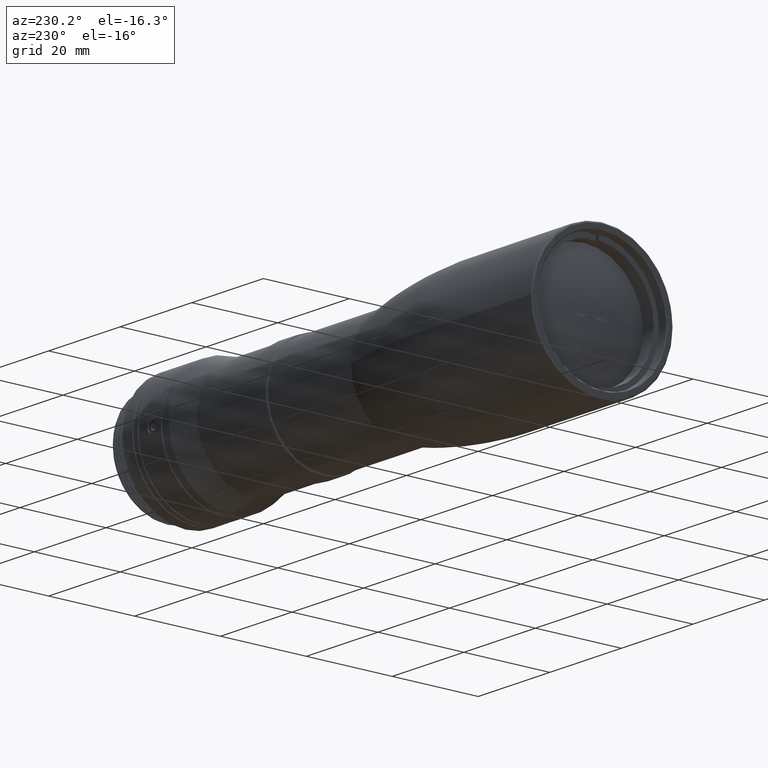
[diagram: clean part render]
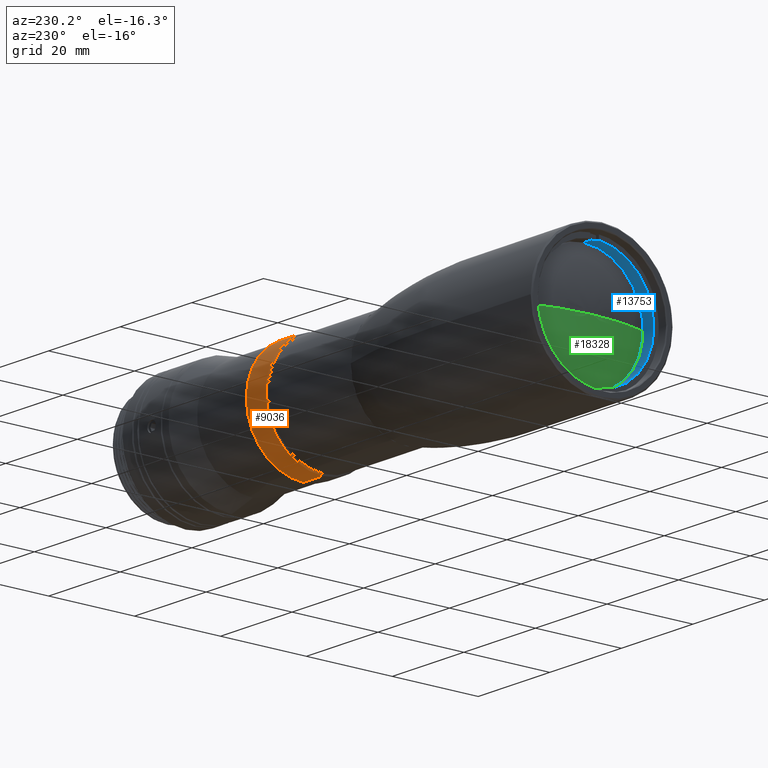
[diagram: same view with three faces highlighted in distinct colors, each labeled with its STEP entity id]
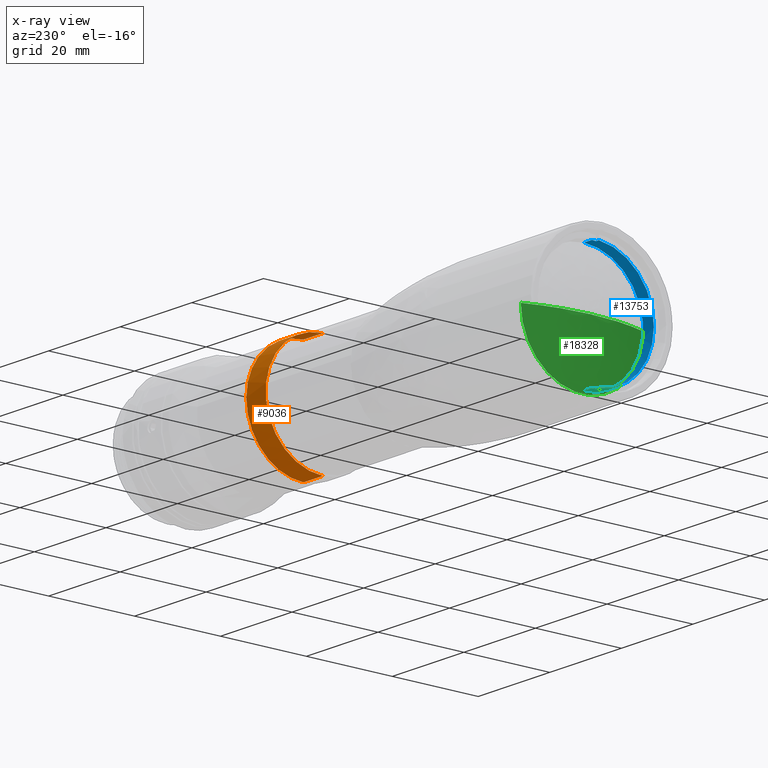
[diagram: x-ray of the same camera — body ghosted, the three highlighted faces saturated]
A machine part, auxiliary view with three faces highlighted in distinct colors.
The next image is the same camera in x-ray (body ghosted, the three faces saturated) — at least one of them is partly hidden behind the body in this view.
Their STEP definitions:

[orange] entity #9036 — the highlighted cylindrical surface (partial cylindrical patch) has radius 13.3 mm, axis along (1, -0, 0).
#89 = CARTESIAN_POINT ( 'NONE',  ( 23.41799999999955872, 0.000000000000000000, 0.000000000000000000 ) ) ;
#118 = CARTESIAN_POINT ( 'NONE',  ( 28.81800000000000139, 13.30000000000088178, 1.628780242866088029E-15 ) ) ;
#204 = DIRECTION ( 'NONE',  ( 1.000000000000000000, 0.000000000000000000, 0.000000000000000000 ) ) ;
#1183 = CARTESIAN_POINT ( 'NONE',  ( 28.81800000000000139, 1.628780242865979955E-15, 13.30000000000000071 ) ) ;
#1218 = DIRECTION ( 'NONE',  ( 1.000000000000000000, -0.000000000000000000, 0.000000000000000000 ) ) ;
#1599 = CARTESIAN_POINT ( 'NONE',  ( 28.81800000000000139, 0.000000000000000000, -13.30000000000000071 ) ) ;
#2539 = CIRCLE ( 'NONE', #13169, 13.30000000000000071 ) ;
#3763 = VECTOR ( 'NONE', #16466, 1000.000000000000000 ) ;
#4075 = ORIENTED_EDGE ( 'NONE', *, *, #7999, .F. ) ;
#4741 = DIRECTION ( 'NONE',  ( 0.000000000000000000, -1.000000000000000000, 0.000000000000000000 ) ) ;
#5497 = VERTEX_POINT ( 'NONE', #1599 ) ;
#6020 = DIRECTION ( 'NONE',  ( 0.000000000000000000, 0.000000000000000000, -1.000000000000000000 ) ) ;
#6218 = VECTOR ( 'NONE', #15659, 1000.000000000000000 ) ;
#6384 = VERTEX_POINT ( 'NONE', #1183 ) ;
#6543 = ORIENTED_EDGE ( 'NONE', *, *, #8298, .F. ) ;
#6583 = AXIS2_PLACEMENT_3D ( 'NONE', #8933, #14811, #4741 ) ;
#7117 = LINE ( 'NONE', #12646, #6218 ) ;
#7595 = ORIENTED_EDGE ( 'NONE', *, *, #14971, .F. ) ;
#7887 = CARTESIAN_POINT ( 'NONE',  ( 23.41799999999955872, 0.000000000000000000, -13.30000000000044302 ) ) ;
#7999 = EDGE_CURVE ( 'NONE', #5497, #11227, #2539, .T. ) ;
#8282 = FACE_OUTER_BOUND ( 'NONE', #15791, .T. ) ;
#8298 = EDGE_CURVE ( 'NONE', #17377, #5497, #9163, .T. ) ;
#8378 = DIRECTION ( 'NONE',  ( 0.000000000000000000, 0.000000000000000000, -1.000000000000000000 ) ) ;
#8933 = CARTESIAN_POINT ( 'NONE',  ( 28.81800000000000139, 0.000000000000000000, 0.000000000000000000 ) ) ;
#9036 = ADVANCED_FACE ( 'NONE', ( #8282 ), #15668, .T. ) ;
#9163 = LINE ( 'NONE', #14937, #3763 ) ;
#11227 = VERTEX_POINT ( 'NONE', #118 ) ;
#12053 = ORIENTED_EDGE ( 'NONE', *, *, #17044, .T. ) ;
#12339 = CIRCLE ( 'NONE', #6583, 13.30000000000000071 ) ;
#12646 = CARTESIAN_POINT ( 'NONE',  ( 23.41799999999999571, 1.628780242865979955E-15, 13.30000000000000071 ) ) ;
#13169 = AXIS2_PLACEMENT_3D ( 'NONE', #17135, #14094, #18411 ) ;
#13566 = ORIENTED_EDGE ( 'NONE', *, *, #15634, .T. ) ;
#14094 = DIRECTION ( 'NONE',  ( 1.000000000000000000, 0.000000000000000000, 0.000000000000000000 ) ) ;
#14159 = VERTEX_POINT ( 'NONE', #17340 ) ;
#14667 = AXIS2_PLACEMENT_3D ( 'NONE', #89, #204, #6020 ) ;
#14811 = DIRECTION ( 'NONE',  ( 1.000000000000000000, 0.000000000000000000, 0.000000000000000000 ) ) ;
#14937 = CARTESIAN_POINT ( 'NONE',  ( 23.41799999999999571, 0.000000000000000000, -13.30000000000000071 ) ) ;
#14971 = EDGE_CURVE ( 'NONE', #11227, #6384, #12339, .T. ) ;
#15566 = CARTESIAN_POINT ( 'NONE',  ( 23.41799999999999571, 0.000000000000000000, 0.000000000000000000 ) ) ;
#15634 = EDGE_CURVE ( 'NONE', #17377, #14159, #17086, .T. ) ;
#15659 = DIRECTION ( 'NONE',  ( 1.000000000000000000, -0.000000000000000000, 0.000000000000000000 ) ) ;
#15668 = CYLINDRICAL_SURFACE ( 'NONE', #16509, 13.30000000000000071 ) ;
#15791 = EDGE_LOOP ( 'NONE', ( #13566, #12053, #7595, #4075, #6543 ) ) ;
#16466 = DIRECTION ( 'NONE',  ( 1.000000000000000000, -0.000000000000000000, 0.000000000000000000 ) ) ;
#16509 = AXIS2_PLACEMENT_3D ( 'NONE', #15566, #1218, #8378 ) ;
#17044 = EDGE_CURVE ( 'NONE', #14159, #6384, #7117, .T. ) ;
#17086 = CIRCLE ( 'NONE', #14667, 13.30000000000044302 ) ;
#17135 = CARTESIAN_POINT ( 'NONE',  ( 28.81800000000000139, 0.000000000000000000, 0.000000000000000000 ) ) ;
#17340 = CARTESIAN_POINT ( 'NONE',  ( 23.41799999999955872, 1.628780242866034190E-15, 13.30000000000044302 ) ) ;
#17377 = VERTEX_POINT ( 'NONE', #7887 ) ;
#18411 = DIRECTION ( 'NONE',  ( 0.000000000000000000, -1.000000000000000000, 0.000000000000000000 ) ) ;

[blue] entity #13753 — the highlighted cylindrical surface (partial cylindrical patch) has radius 13.8 mm, axis along (1, -0, 0).
#445 = LINE ( 'NONE', #6636, #5905 ) ;
#1030 = CARTESIAN_POINT ( 'NONE',  ( -52.53999999999999915, 1.690012582823347529E-15, 13.80000000000000071 ) ) ;
#1041 = DIRECTION ( 'NONE',  ( 1.000000000000000000, -0.000000000000000000, 0.000000000000000000 ) ) ;
#1066 = CARTESIAN_POINT ( 'NONE',  ( -52.53999999999999915, -0.9999999999999347189, 13.76372042726820943 ) ) ;
#1525 = CARTESIAN_POINT ( 'NONE',  ( -49.53999999999999915, 0.000000000000000000, 0.000000000000000000 ) ) ;
#1772 = CYLINDRICAL_SURFACE ( 'NONE', #17485, 13.80000000000000071 ) ;
#1935 = DIRECTION ( 'NONE',  ( -1.000000000000000000, -0.000000000000000000, -0.000000000000000000 ) ) ;
#2005 = VECTOR ( 'NONE', #5909, 1000.000000000000000 ) ;
#2192 = EDGE_CURVE ( 'NONE', #4868, #9138, #14197, .T. ) ;
#2372 = DIRECTION ( 'NONE',  ( 1.000000000000000000, -0.000000000000000000, 0.000000000000000000 ) ) ;
#3097 = CARTESIAN_POINT ( 'NONE',  ( -52.53999999999999915, 0.000000000000000000, 0.000000000000000000 ) ) ;
#3482 = DIRECTION ( 'NONE',  ( 1.000000000000000000, 0.000000000000000000, 0.000000000000000000 ) ) ;
#3524 = VECTOR ( 'NONE', #2372, 1000.000000000000000 ) ;
#3653 = VERTEX_POINT ( 'NONE', #5206 ) ;
#4070 = DIRECTION ( 'NONE',  ( 0.000000000000000000, 0.000000000000000000, -1.000000000000000000 ) ) ;
#4266 = DIRECTION ( 'NONE',  ( 0.000000000000000000, 0.000000000000000000, -1.000000000000000000 ) ) ;
#4611 = EDGE_LOOP ( 'NONE', ( #13312, #10736, #15697, #9253, #11433, #14120, #15524, #8667 ) ) ;
#4868 = VERTEX_POINT ( 'NONE', #1066 ) ;
#4978 = LINE ( 'NONE', #15239, #6244 ) ;
#5206 = CARTESIAN_POINT ( 'NONE',  ( -51.73999999999999488, 1.690012582823347529E-15, 13.80000000000000071 ) ) ;
#5381 = EDGE_CURVE ( 'NONE', #3653, #14230, #14066, .T. ) ;
#5705 = DIRECTION ( 'NONE',  ( 0.000000000000000000, 0.000000000000000000, -1.000000000000000000 ) ) ;
#5905 = VECTOR ( 'NONE', #3482, 1000.000000000000000 ) ;
#5909 = DIRECTION ( 'NONE',  ( 1.000000000000000000, -0.000000000000000000, 0.000000000000000000 ) ) ;
#6034 = AXIS2_PLACEMENT_3D ( 'NONE', #15430, #6706, #5705 ) ;
#6171 = CARTESIAN_POINT ( 'NONE',  ( -51.73999999999999488, 0.000000000000000000, -13.80000000000000071 ) ) ;
#6209 = AXIS2_PLACEMENT_3D ( 'NONE', #10075, #17393, #4266 ) ;
#6244 = VECTOR ( 'NONE', #1935, 1000.000000000000000 ) ;
#6245 = EDGE_CURVE ( 'NONE', #9138, #13609, #445, .T. ) ;
#6504 = EDGE_CURVE ( 'NONE', #14230, #4868, #4978, .T. ) ;
#6636 = CARTESIAN_POINT ( 'NONE',  ( -51.03999999999999915, -0.9999999999998701039, -13.76372042726821476 ) ) ;
#6706 = DIRECTION ( 'NONE',  ( 1.000000000000000000, -0.000000000000000000, 0.000000000000000000 ) ) ;
#7147 = CARTESIAN_POINT ( 'NONE',  ( -52.53999999999999915, 0.000000000000000000, -13.80000000000000071 ) ) ;
#8383 = CARTESIAN_POINT ( 'NONE',  ( -51.73999999999999488, 0.000000000000000000, 0.000000000000000000 ) ) ;
#8667 = ORIENTED_EDGE ( 'NONE', *, *, #6504, .F. ) ;
#8774 = LINE ( 'NONE', #7147, #2005 ) ;
#9138 = VERTEX_POINT ( 'NONE', #12526 ) ;
#9253 = ORIENTED_EDGE ( 'NONE', *, *, #14445, .F. ) ;
#9523 = EDGE_CURVE ( 'NONE', #13609, #18508, #14371, .T. ) ;
#9698 = VERTEX_POINT ( 'NONE', #17969 ) ;
#10075 = CARTESIAN_POINT ( 'NONE',  ( -51.73999999999999488, 0.000000000000000000, 0.000000000000000000 ) ) ;
#10146 = VERTEX_POINT ( 'NONE', #17058 ) ;
#10736 = ORIENTED_EDGE ( 'NONE', *, *, #14771, .T. ) ;
#11433 = ORIENTED_EDGE ( 'NONE', *, *, #9523, .F. ) ;
#11847 = CARTESIAN_POINT ( 'NONE',  ( -51.73999999999999488, -0.9999999999999349409, 13.76372042726821121 ) ) ;
#12526 = CARTESIAN_POINT ( 'NONE',  ( -52.53999999999999915, -0.9999999999999349409, -13.76372042726821121 ) ) ;
#13312 = ORIENTED_EDGE ( 'NONE', *, *, #5381, .F. ) ;
#13363 = FACE_OUTER_BOUND ( 'NONE', #4611, .T. ) ;
#13510 = CIRCLE ( 'NONE', #18394, 13.80000000000000071 ) ;
#13609 = VERTEX_POINT ( 'NONE', #15871 ) ;
#13638 = EDGE_CURVE ( 'NONE', #9698, #10146, #13510, .T. ) ;
#13753 = ADVANCED_FACE ( 'NONE', ( #13363 ), #1772, .F. ) ;
#14066 = CIRCLE ( 'NONE', #16512, 13.80000000000000071 ) ;
#14120 = ORIENTED_EDGE ( 'NONE', *, *, #6245, .F. ) ;
#14197 = CIRCLE ( 'NONE', #6034, 13.80000000000000071 ) ;
#14230 = VERTEX_POINT ( 'NONE', #11847 ) ;
#14371 = CIRCLE ( 'NONE', #6209, 13.80000000000000071 ) ;
#14445 = EDGE_CURVE ( 'NONE', #18508, #9698, #8774, .T. ) ;
#14604 = DIRECTION ( 'NONE',  ( 0.000000000000000000, 0.000000000000000000, -1.000000000000000000 ) ) ;
#14771 = EDGE_CURVE ( 'NONE', #3653, #10146, #18268, .T. ) ;
#15239 = CARTESIAN_POINT ( 'NONE',  ( -51.03999999999999915, -0.9999999999998698819, 13.76372042726821476 ) ) ;
#15430 = CARTESIAN_POINT ( 'NONE',  ( -52.53999999999999915, 0.000000000000000000, 0.000000000000000000 ) ) ;
#15524 = ORIENTED_EDGE ( 'NONE', *, *, #2192, .F. ) ;
#15697 = ORIENTED_EDGE ( 'NONE', *, *, #13638, .F. ) ;
#15871 = CARTESIAN_POINT ( 'NONE',  ( -51.73999999999999488, -0.9999999999999349409, -13.76372042726820943 ) ) ;
#15986 = DIRECTION ( 'NONE',  ( 0.000000000000000000, 0.000000000000000000, -1.000000000000000000 ) ) ;
#16512 = AXIS2_PLACEMENT_3D ( 'NONE', #8383, #1041, #4070 ) ;
#17058 = CARTESIAN_POINT ( 'NONE',  ( -49.53999999999999915, 1.690012582823347529E-15, 13.80000000000000071 ) ) ;
#17318 = DIRECTION ( 'NONE',  ( -1.000000000000000000, 0.000000000000000000, -0.000000000000000000 ) ) ;
#17393 = DIRECTION ( 'NONE',  ( 1.000000000000000000, -0.000000000000000000, 0.000000000000000000 ) ) ;
#17467 = DIRECTION ( 'NONE',  ( 1.000000000000000000, -0.000000000000000000, 0.000000000000000000 ) ) ;
#17485 = AXIS2_PLACEMENT_3D ( 'NONE', #3097, #17467, #14604 ) ;
#17969 = CARTESIAN_POINT ( 'NONE',  ( -49.53999999999999915, 0.000000000000000000, -13.80000000000000071 ) ) ;
#18268 = LINE ( 'NONE', #1030, #3524 ) ;
#18394 = AXIS2_PLACEMENT_3D ( 'NONE', #1525, #17318, #15986 ) ;
#18508 = VERTEX_POINT ( 'NONE', #6171 ) ;

[green] entity #18328 — the highlighted face is a freeform B-spline surface patch.
#319 = CARTESIAN_POINT ( 'NONE',  ( -51.51800000000000779, 0.000000000000000000, 3.224183580766461833E-31 ) ) ;
#1097 = EDGE_LOOP ( 'NONE', ( #12667, #14612, #2785 ) ) ;
#1403 = CARTESIAN_POINT ( 'NONE',  ( -51.51800000000000779, -4.882066617542334619, -9.764133235084646145 ) ) ;
#1898 = CARTESIAN_POINT ( 'NONE',  ( -51.51800000000001489, 4.882066617542299980, -5.978807256397325019E-16 ) ) ;
#1977 = CARTESIAN_POINT ( 'NONE',  ( -49.07042577123358740, 14.29969172656387322, 4.604903683524175501E-14 ) ) ;
#2731 = CARTESIAN_POINT ( 'NONE',  ( -51.51800000000000779, -5.265491377613960073E-15, -1.695636598605592973E-29 ) ) ;
#2785 = ORIENTED_EDGE ( 'NONE', *, *, #11195, .F. ) ;
#3485 = DIRECTION ( 'NONE',  ( 1.000000000000000000, 0.000000000000000000, 0.000000000000000000 ) ) ;
#4260 = CARTESIAN_POINT ( 'NONE',  ( -51.51800000000001489, -4.882066617542299980, 1.836965876599079571E-14 ) ) ;
#4350 = CARTESIAN_POINT ( 'NONE',  ( -50.69442775314934124, -9.694646731522599481, 3.647786199290944002E-14 ) ) ;
#5340 = VERTEX_POINT ( 'NONE', #18635 ) ;
#6101 =( BOUNDED_CURVE ( )  B_SPLINE_CURVE ( 3, ( #319, #14948, #10690, #8892 ),
 .UNSPECIFIED., .F., .T. ) 
 B_SPLINE_CURVE_WITH_KNOTS ( ( 4, 4 ),
 ( 0.000000000000000000, 0.9802938473279649845 ),
 .UNSPECIFIED. ) 
 CURVE ( )  GEOMETRIC_REPRESENTATION_ITEM ( )  RATIONAL_B_SPLINE_CURVE ( ( 1.000000000000000000, 0.9902545873543192601, 0.9900625427648714894, 0.9994238662316567989 ) ) 
 REPRESENTATION_ITEM ( '' )  );
#7029 = CARTESIAN_POINT ( 'NONE',  ( -51.51800000000000779, 5.265491377613960073E-15, -1.981236378350119905E-29 ) ) ;
#7310 = VERTEX_POINT ( 'NONE', #14708 ) ;
#7715 = CARTESIAN_POINT ( 'NONE',  ( -50.69442775314932703, 9.694646731522601257, -1.187251808862350146E-15 ) ) ;
#7800 = CARTESIAN_POINT ( 'NONE',  ( -49.07042577123358740, -14.29969172656387322, 5.380517679377285563E-14 ) ) ;
#8752 = CARTESIAN_POINT ( 'NONE',  ( -50.69442775314934124, 9.694646731522661653, -19.38929346304530554 ) ) ;
#8892 = CARTESIAN_POINT ( 'NONE',  ( -49.07042577123358029, -14.29969172656386611, 5.380517679377283670E-14 ) ) ;
#9264 =( BOUNDED_SURFACE ( )  B_SPLINE_SURFACE ( 3, 3, ( 
 ( #7029, #9978, #15754, #2731 ),
 ( #4260, #1403, #13006, #17384 ),
 ( #4350, #15957, #8752, #14535 ),
 ( #7800, #10268, #11784, #1977 ) ),
 .UNSPECIFIED., .F., .F., .T. ) 
 B_SPLINE_SURFACE_WITH_KNOTS ( ( 4, 4 ),
 ( 4, 4 ),
 ( 0.000000000000000000, 0.9802938473279647624 ),
 ( 0.000000000000000000, 1.000000000000000000 ),
 .UNSPECIFIED. ) 
 GEOMETRIC_REPRESENTATION_ITEM ( )  RATIONAL_B_SPLINE_SURFACE ( (
 ( 1.000000000000000000, 0.3333333333333309834, 0.3333333333333309834, 1.000000000000000000),
 ( 0.9902545873543192601, 0.3300848624514374219, 0.3300848624514374219, 0.9902545873543192601),
 ( 0.9900625427648714894, 0.3300208475882881465, 0.3300208475882881465, 0.9900625427648714894),
 ( 0.9994238662316567989, 0.3331412887438832682, 0.3331412887438832682, 0.9994238662316567989) ) ) 
 REPRESENTATION_ITEM ( '' )  SURFACE ( )  );
#9978 = CARTESIAN_POINT ( 'NONE',  ( -51.51800000000000779, 5.265491377613999516E-15, 1.053098275522797537E-14 ) ) ;
#10268 = CARTESIAN_POINT ( 'NONE',  ( -49.07042577123358740, -14.29969172656397980, -28.59938345312789565 ) ) ;
#10690 = CARTESIAN_POINT ( 'NONE',  ( -50.69442775314932703, -9.694646731522601257, 0.000000000000000000 ) ) ;
#10717 = CARTESIAN_POINT ( 'NONE',  ( -49.07042577123358029, 0.000000000000000000, 0.000000000000000000 ) ) ;
#11102 = CIRCLE ( 'NONE', #15640, 14.29969172656386789 ) ;
#11195 = EDGE_CURVE ( 'NONE', #14119, #5340, #11102, .T. ) ;
#11784 = CARTESIAN_POINT ( 'NONE',  ( -49.07042577123358740, 14.29969172656396381, -28.59938345312789920 ) ) ;
#12667 = ORIENTED_EDGE ( 'NONE', *, *, #16230, .F. ) ;
#12962 = CARTESIAN_POINT ( 'NONE',  ( -49.07042577123358029, -14.29969172656386611, 5.380517679377283670E-14 ) ) ;
#13006 = CARTESIAN_POINT ( 'NONE',  ( -51.51800000000000779, 4.882066617542329290, -9.764133235084651474 ) ) ;
#14119 = VERTEX_POINT ( 'NONE', #12962 ) ;
#14535 = CARTESIAN_POINT ( 'NONE',  ( -50.69442775314934124, 9.694646731522599481, 3.121949430666602414E-14 ) ) ;
#14612 = ORIENTED_EDGE ( 'NONE', *, *, #17965, .T. ) ;
#14708 = CARTESIAN_POINT ( 'NONE',  ( -51.51800000000000779, 0.000000000000000000, 3.224183580766461833E-31 ) ) ;
#14922 = CARTESIAN_POINT ( 'NONE',  ( -49.07042577123358029, 14.29969172656386789, 5.204170427930425070E-14 ) ) ;
#14948 = CARTESIAN_POINT ( 'NONE',  ( -51.51800000000001489, -4.882066617542299980, 0.000000000000000000 ) ) ;
#15079 =( BOUNDED_CURVE ( )  B_SPLINE_CURVE ( 3, ( #17700, #1898, #7715, #14922 ),
 .UNSPECIFIED., .F., .T. ) 
 B_SPLINE_CURVE_WITH_KNOTS ( ( 4, 4 ),
 ( 0.000000000000000000, 0.9802938473279649845 ),
 .UNSPECIFIED. ) 
 CURVE ( )  GEOMETRIC_REPRESENTATION_ITEM ( )  RATIONAL_B_SPLINE_CURVE ( ( 1.000000000000000000, 0.9902545873543192601, 0.9900625427648714894, 0.9994238662316567989 ) ) 
 REPRESENTATION_ITEM ( '' )  );
#15640 = AXIS2_PLACEMENT_3D ( 'NONE', #10717, #3485, #17861 ) ;
#15754 = CARTESIAN_POINT ( 'NONE',  ( -51.51800000000000779, -5.265491377613994782E-15, 1.053098275522798010E-14 ) ) ;
#15957 = CARTESIAN_POINT ( 'NONE',  ( -50.69442775314934124, -9.694646731522672312, -19.38929346304530199 ) ) ;
#16230 = EDGE_CURVE ( 'NONE', #7310, #14119, #6101, .T. ) ;
#17008 = FACE_OUTER_BOUND ( 'NONE', #1097, .T. ) ;
#17384 = CARTESIAN_POINT ( 'NONE',  ( -51.51800000000001489, 4.882066617542299980, 1.572163021428511117E-14 ) ) ;
#17700 = CARTESIAN_POINT ( 'NONE',  ( -51.51800000000000779, 0.000000000000000000, 3.224183580766461833E-31 ) ) ;
#17861 = DIRECTION ( 'NONE',  ( 0.000000000000000000, 0.000000000000000000, -1.000000000000000000 ) ) ;
#17965 = EDGE_CURVE ( 'NONE', #7310, #5340, #15079, .T. ) ;
#18328 = ADVANCED_FACE ( 'NONE', ( #17008 ), #9264, .F. ) ;
#18635 = CARTESIAN_POINT ( 'NONE',  ( -49.07042577123358029, 14.29969172656386789, 5.204170427930425070E-14 ) ) ;